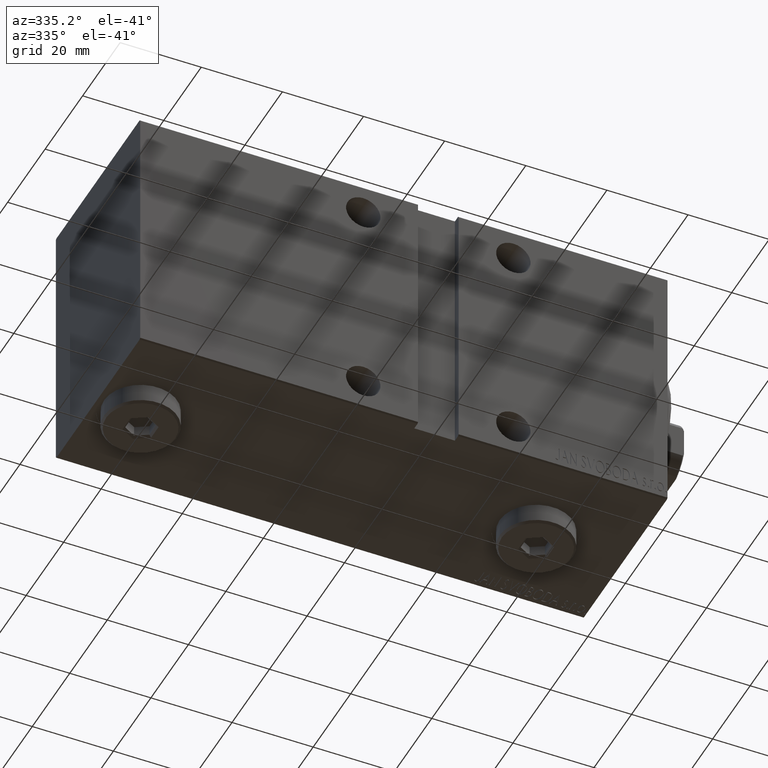
[diagram: clean part render]
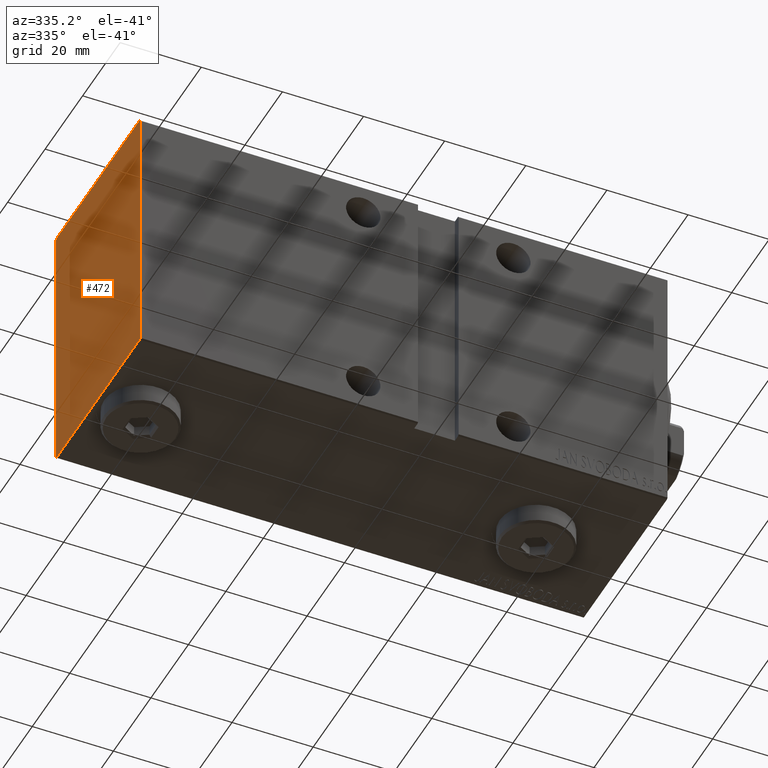
[diagram: same view with one face highlighted and labeled with its STEP entity id]
A machine part, auxiliary view. The second image highlights one B-rep face of the part: STEP entity #472.
In plain terms, the highlighted planar face has unit normal (-1, -0, 0).
Its self-contained STEP definition (entity closure, byte-faithful):
#472 = ADVANCED_FACE ( 'NONE', ( #24352 ), #27501, .T. ) ;
#1532 = CARTESIAN_POINT ( 'NONE',  ( 130.0000000000000000, -22.20000000000001350, -32.50000000000000000 ) ) ;
#2301 = VERTEX_POINT ( 'NONE', #6237 ) ;
#2311 = DIRECTION ( 'NONE',  ( 0.000000000000000000, 0.000000000000000000, -1.000000000000000000 ) ) ;
#3662 = VERTEX_POINT ( 'NONE', #29661 ) ;
#3719 = EDGE_CURVE ( 'NONE', #37811, #21039, #40472, .T. ) ;
#3720 = LINE ( 'NONE', #31197, #36221 ) ;
#3918 = CARTESIAN_POINT ( 'NONE',  ( 130.0000000000000000, -22.19999999999999929, 32.50000000000000000 ) ) ;
#4865 = LINE ( 'NONE', #29378, #44344 ) ;
#5478 = CARTESIAN_POINT ( 'NONE',  ( 130.0000000000000000, -22.49999999999999645, 32.50000000000000000 ) ) ;
#5866 = ORIENTED_EDGE ( 'NONE', *, *, #5991, .T. ) ;
#5991 = EDGE_CURVE ( 'NONE', #17435, #16055, #37876, .T. ) ;
#6237 = CARTESIAN_POINT ( 'NONE',  ( 130.0000000000000000, -22.49999999999999645, 32.20000000000001705 ) ) ;
#6405 = EDGE_CURVE ( 'NONE', #16055, #25690, #24196, .T. ) ;
#6597 = CARTESIAN_POINT ( 'NONE',  ( 130.0000000000000000, 22.49999999999999645, 32.20000000000003126 ) ) ;
#6870 = ORIENTED_EDGE ( 'NONE', *, *, #27212, .T. ) ;
#7455 = DIRECTION ( 'NONE',  ( 1.000000000000000000, 0.000000000000000000, 0.000000000000000000 ) ) ;
#8263 = DIRECTION ( 'NONE',  ( 0.000000000000000000, -0.7071067811865474617, -0.7071067811865474617 ) ) ;
#9502 = LINE ( 'NONE', #5478, #34870 ) ;
#9612 = DIRECTION ( 'NONE',  ( -0.000000000000000000, 0.7071067811865474617, 0.7071067811865474617 ) ) ;
#10673 = DIRECTION ( 'NONE',  ( 0.000000000000000000, -1.000000000000000000, -1.541976423090495633E-16 ) ) ;
#11505 = ORIENTED_EDGE ( 'NONE', *, *, #24030, .T. ) ;
#11597 = DIRECTION ( 'NONE',  ( 0.000000000000000000, -1.067522139062650425E-16, 1.000000000000000000 ) ) ;
#13761 = DIRECTION ( 'NONE',  ( 0.000000000000000000, 0.000000000000000000, -1.000000000000000000 ) ) ;
#13993 = CARTESIAN_POINT ( 'NONE',  ( 130.0000000000000000, 22.50000000000000355, -32.20000000000001705 ) ) ;
#14081 = ORIENTED_EDGE ( 'NONE', *, *, #38453, .T. ) ;
#15280 = VERTEX_POINT ( 'NONE', #1532 ) ;
#16055 = VERTEX_POINT ( 'NONE', #28303 ) ;
#16530 = VECTOR ( 'NONE', #10673, 1000.000000000000000 ) ;
#17435 = VERTEX_POINT ( 'NONE', #6597 ) ;
#18734 = LINE ( 'NONE', #31204, #22698 ) ;
#19044 = EDGE_CURVE ( 'NONE', #2301, #3662, #9502, .T. ) ;
#20607 = DIRECTION ( 'NONE',  ( -0.000000000000000000, 0.7071067811865474617, -0.7071067811865474617 ) ) ;
#20752 = CARTESIAN_POINT ( 'NONE',  ( 130.0000000000000000, 27.34999999999975273, 27.35000000000038511 ) ) ;
#20800 = VECTOR ( 'NONE', #34720, 1000.000000000000000 ) ;
#20810 = CARTESIAN_POINT ( 'NONE',  ( 130.0000000000000000, 22.49999999999999645, 32.50000000000000711 ) ) ;
#20989 = ORIENTED_EDGE ( 'NONE', *, *, #19044, .T. ) ;
#21039 = VERTEX_POINT ( 'NONE', #13993 ) ;
#22698 = VECTOR ( 'NONE', #20607, 1000.000000000000114 ) ;
#24030 = EDGE_CURVE ( 'NONE', #25690, #2301, #29201, .T. ) ;
#24196 = LINE ( 'NONE', #20810, #16530 ) ;
#24352 = FACE_OUTER_BOUND ( 'NONE', #27721, .T. ) ;
#24390 = AXIS2_PLACEMENT_3D ( 'NONE', #31779, #7455, #13761 ) ;
#25690 = VERTEX_POINT ( 'NONE', #3918 ) ;
#27212 = EDGE_CURVE ( 'NONE', #3662, #15280, #18734, .T. ) ;
#27501 = PLANE ( 'NONE',  #24390 ) ;
#27522 = ORIENTED_EDGE ( 'NONE', *, *, #3719, .T. ) ;
#27721 = EDGE_LOOP ( 'NONE', ( #14081, #27522, #38343, #5866, #32791, #11505, #20989, #6870 ) ) ;
#27812 = DIRECTION ( 'NONE',  ( 0.000000000000000000, 1.000000000000000000, 0.000000000000000000 ) ) ;
#27979 = VECTOR ( 'NONE', #9612, 1000.000000000000114 ) ;
#28303 = CARTESIAN_POINT ( 'NONE',  ( 130.0000000000000000, 22.20000000000001350, 32.50000000000000711 ) ) ;
#29201 = LINE ( 'NONE', #43151, #44191 ) ;
#29378 = CARTESIAN_POINT ( 'NONE',  ( 130.0000000000000000, 22.50000000000000355, -32.50000000000000000 ) ) ;
#29661 = CARTESIAN_POINT ( 'NONE',  ( 130.0000000000000000, -22.49999999999999645, -32.20000000000001705 ) ) ;
#30181 = CARTESIAN_POINT ( 'NONE',  ( 130.0000000000000000, 22.20000000000000639, -32.50000000000000000 ) ) ;
#30225 = EDGE_CURVE ( 'NONE', #21039, #17435, #4865, .T. ) ;
#31197 = CARTESIAN_POINT ( 'NONE',  ( 130.0000000000000000, -22.49999999999999645, -32.50000000000000000 ) ) ;
#31204 = CARTESIAN_POINT ( 'NONE',  ( 130.0000000000000000, -27.35000000000000497, -27.35000000000000497 ) ) ;
#31779 = CARTESIAN_POINT ( 'NONE',  ( 130.0000000000000000, 0.000000000000000000, 0.000000000000000000 ) ) ;
#32791 = ORIENTED_EDGE ( 'NONE', *, *, #6405, .T. ) ;
#33718 = CARTESIAN_POINT ( 'NONE',  ( 130.0000000000000000, 27.35000000000000853, -27.35000000000000853 ) ) ;
#34720 = DIRECTION ( 'NONE',  ( -0.000000000000000000, -0.7071067811865556774, 0.7071067811865393571 ) ) ;
#34870 = VECTOR ( 'NONE', #2311, 1000.000000000000000 ) ;
#36221 = VECTOR ( 'NONE', #27812, 1000.000000000000000 ) ;
#37811 = VERTEX_POINT ( 'NONE', #30181 ) ;
#37876 = LINE ( 'NONE', #20752, #20800 ) ;
#38343 = ORIENTED_EDGE ( 'NONE', *, *, #30225, .T. ) ;
#38453 = EDGE_CURVE ( 'NONE', #15280, #37811, #3720, .T. ) ;
#40472 = LINE ( 'NONE', #33718, #27979 ) ;
#43151 = CARTESIAN_POINT ( 'NONE',  ( 130.0000000000000000, -27.35000000000000497, 27.35000000000000497 ) ) ;
#44191 = VECTOR ( 'NONE', #8263, 1000.000000000000114 ) ;
#44344 = VECTOR ( 'NONE', #11597, 1000.000000000000000 ) ;